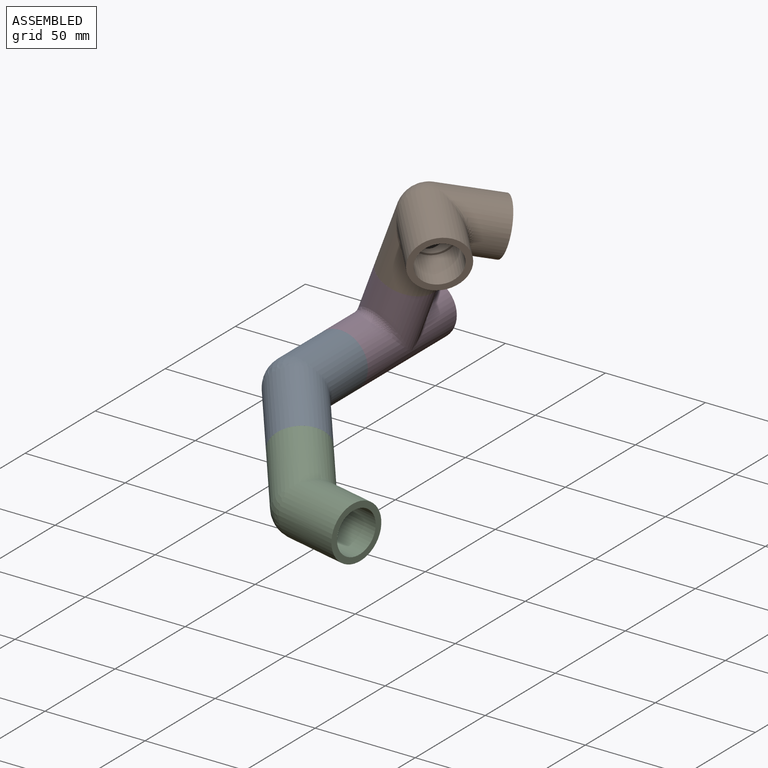
[diagram: assembled view]
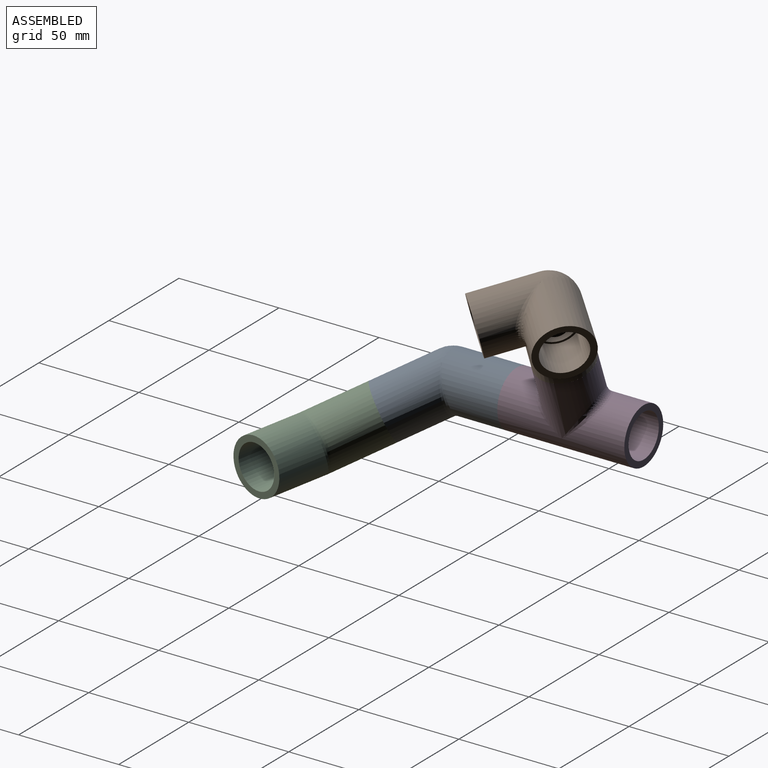
[diagram: assembled view, second angle]
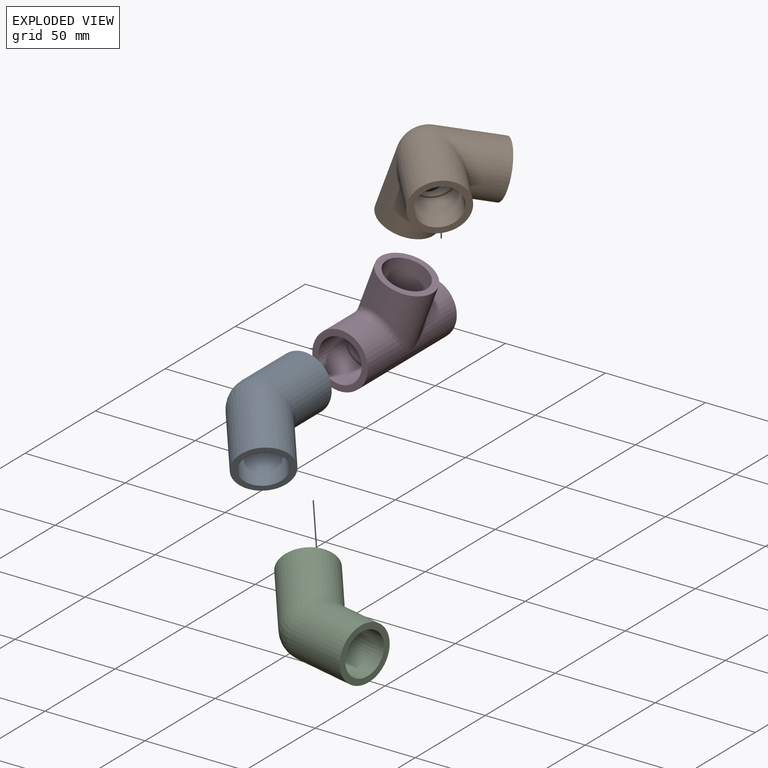
[diagram: exploded view]
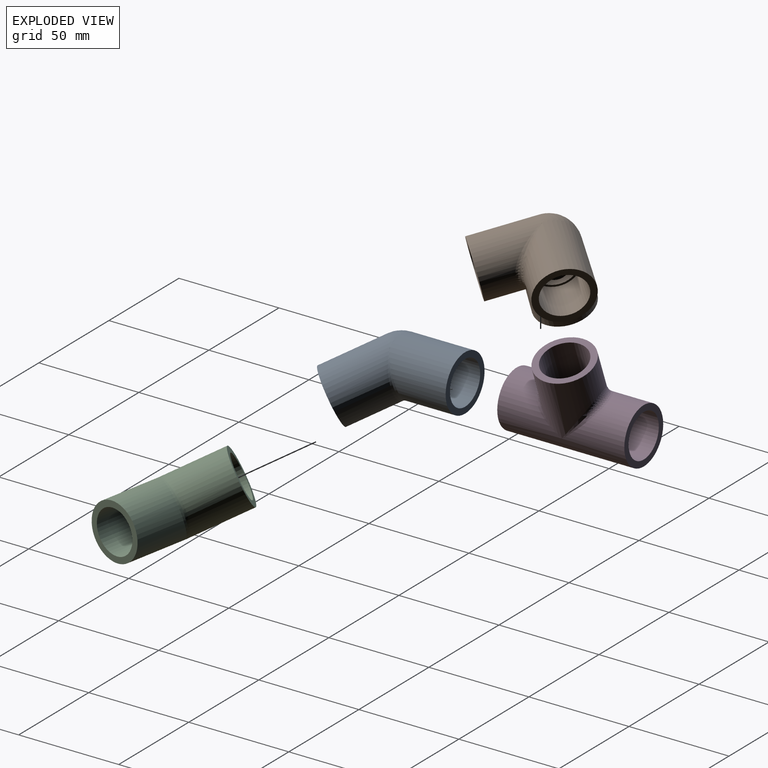
[diagram: exploded view, second angle]
ASSEMBLY  parts=4 mates=3
PART A: 13 faces, bbox 64x46.2x27.8 mm
  f0: plane 27.79x19.65mm, normal (-0.71,-0.71,0), area 242.1mm2, adj f6,f10
  f1: cylinder r=9.78mm len=22.81mm, axis (0.71,0.71,0), area 701.1mm2, adj f2,f7,f11
  f2: cylinder r=9.78mm len=19.56mm, axis (-1,0,0), area 701.1mm2, adj f1,f7,f9
  f3: sphere r=13.89mm, area 303.2mm2, adj f4,f6
  f4: cylinder r=13.89mm len=31.75mm, axis (-1,0,0), area 2575.2mm2, adj f3,f5,f12
  f5: plane 27.79x27.79mm, normal (1,0,0), area 242.1mm2, adj f4,f8
  f6: cylinder r=13.89mm len=42.1mm, axis (0.71,0.71,0), area 2575.2mm2, adj f0,f3,f12
  f7: sphere r=9.78mm, area 150.2mm2, adj f1,f2
  f8: cylinder r=10.77mm len=21.54mm, axis (1,0,0), area 1289.1mm2, adj f5,f9
  f9: plane 21.54x21.54mm, normal (1,0,0), area 63.9mm2, adj f2,f8
  f10: cylinder r=10.77mm len=28.7mm, axis (-0.71,-0.71,0), area 1289.1mm2, adj f0,f11
  f11: plane 21.54x15.23mm, normal (-0.71,-0.71,0), area 63.9mm2, adj f1,f10
  f12: bspline ~27.79x14.82mm, area 70.9mm2, adj f4,f6
PART B: 21 faces, bbox 45.6x45.6x45.6 mm
  f0: cylinder r=9.78mm len=19.56mm, axis (0,0,-1), area 453.8mm2, adj f1,f2,f10,f16
  f1: cylinder r=9.78mm len=19.56mm, axis (0,1,0), area 453.8mm2, adj f0,f2,f10,f14
  f2: cylinder r=9.78mm len=19.56mm, axis (-1,0,0), area 453.8mm2, adj f0,f1,f10,f12
  f3: cylinder r=13.89mm len=31.75mm, axis (0,1,0), area 1962mm2, adj f5,f8,f18,f20
  f4: cylinder r=13.89mm len=31.75mm, axis (-1,0,0), area 1962mm2, adj f6,f8,f17,f18
  f5: plane 27.79x27.79mm, normal (0,-1,0), area 242.1mm2, adj f3,f13
  f6: plane 27.79x27.79mm, normal (1,0,0), area 242.1mm2, adj f4,f11
  f7: cylinder r=13.89mm len=31.75mm, axis (0,0,-1), area 1962mm2, adj f8,f9,f17,f20
  f8: sphere r=13.89mm, area 303.2mm2, adj f3,f4,f7
  f9: plane 27.79x27.79mm, normal (0,0,1), area 242.1mm2, adj f7,f15
  f10: sphere r=9.78mm, area 150.2mm2, adj f0,f1,f2
  f11: cylinder r=10.77mm len=21.54mm, axis (1,0,0), area 1289.1mm2, adj f6,f12
  f12: plane 21.54x21.54mm, normal (1,0,0), area 63.9mm2, adj f2,f11
  f13: cylinder r=10.77mm len=21.54mm, axis (0,-1,0), area 1289.1mm2, adj f5,f14
  f14: plane 21.54x21.54mm, normal (0,-1,0), area 63.9mm2, adj f1,f13
  f15: cylinder r=10.77mm len=21.54mm, axis (0,0,1), area 1289.1mm2, adj f9,f16
  f16: plane 21.54x21.54mm, normal (0,0,1), area 63.9mm2, adj f0,f15
  f17: bspline ~24.92x17.07mm, area 129mm2, adj f4,f7,f19
  f18: bspline ~24.92x17.07mm, area 129mm2, adj f3,f4,f19
  f19: sphere r=3.17mm, area 5.6mm2, adj f17,f18,f20
  f20: bspline ~24.92x17.07mm, area 129mm2, adj f3,f7,f19
PART C: same geometry as A
PART D: 15 faces, bbox 63.5x45.6x27.8 mm
  f0: plane 27.79x27.79mm, normal (-1,0,0), area 242.1mm2, adj f5,f11
  f1: cylinder r=9.78mm len=19.56mm, axis (0,1,0), area 397.8mm2, adj f2,f10
  f2: cylinder r=9.78mm len=25.4mm, axis (-1,0,0), area 1178.1mm2, adj f1,f8,f12
  f3: cylinder r=13.89mm len=31.75mm, axis (0,1,0), area 1823.1mm2, adj f4,f13,f14
  f4: plane 27.79x27.79mm, normal (0,-1,0), area 242.1mm2, adj f3,f9
  f5: cylinder r=13.89mm len=63.5mm, axis (-1,0,0), area 4594.8mm2, adj f0,f6,f13,f14
  f6: plane 27.79x27.79mm, normal (1,0,0), area 242.1mm2, adj f5,f7
  f7: cylinder r=10.77mm len=21.54mm, axis (1,0,0), area 1289.1mm2, adj f6,f8
  f8: plane 21.54x21.54mm, normal (1,0,0), area 63.9mm2, adj f2,f7
  f9: cylinder r=10.77mm len=21.54mm, axis (0,-1,0), area 1289.1mm2, adj f4,f10
  f10: plane 21.54x21.54mm, normal (0,-1,0), area 63.9mm2, adj f1,f9
  f11: cylinder r=10.77mm len=21.54mm, axis (-1,0,0), area 1289.1mm2, adj f0,f12
  f12: plane 21.54x21.54mm, normal (-1,0,0), area 63.9mm2, adj f2,f11
  f13: bspline ~27.79x17.07mm, area 155.8mm2, adj f3,f5
  f14: bspline ~27.79x17.07mm, area 155.8mm2, adj f3,f5
PLACE A rot(axis=(0.31,0.31,0.9),95.9deg) t=(-6.25,-62.22,9.09)mm
PLACE B rot(axis=(0.91,-0.38,-0.16),172.2deg) t=(15.97,1.28,68.57)mm
PLACE C rot(axis=(-0.99,0.11,-0.03),143.8deg) t=(29.35,-107.12,-18.28)mm
PLACE D rot(axis=(-0.5,-0.5,0.71),109deg) t=(-6.25,1.28,9.09)mm
MATE revolute A.f2 <-> D.f2  axis (0,-1,0) through (-6.25,-30.47,9.09)mm
MATE revolute A.f1 <-> C.f1  axis (-0.56,0.71,0.43) through (11.55,-84.67,-4.59)mm
MATE revolute B.f0 <-> D.f1  axis (-0.35,0,-0.94) through (4.86,1.28,38.83)mm
